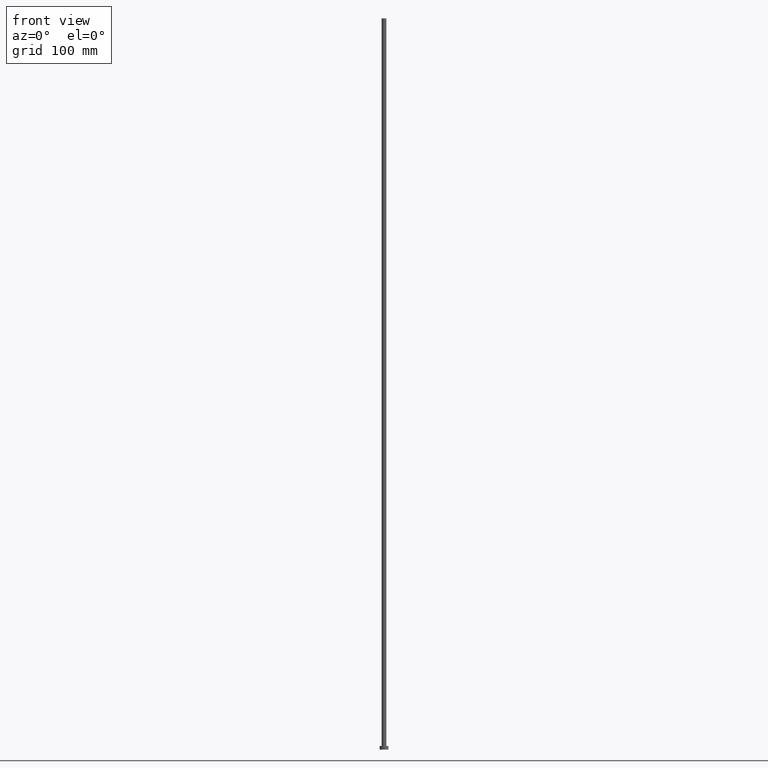
[diagram: clean part render]
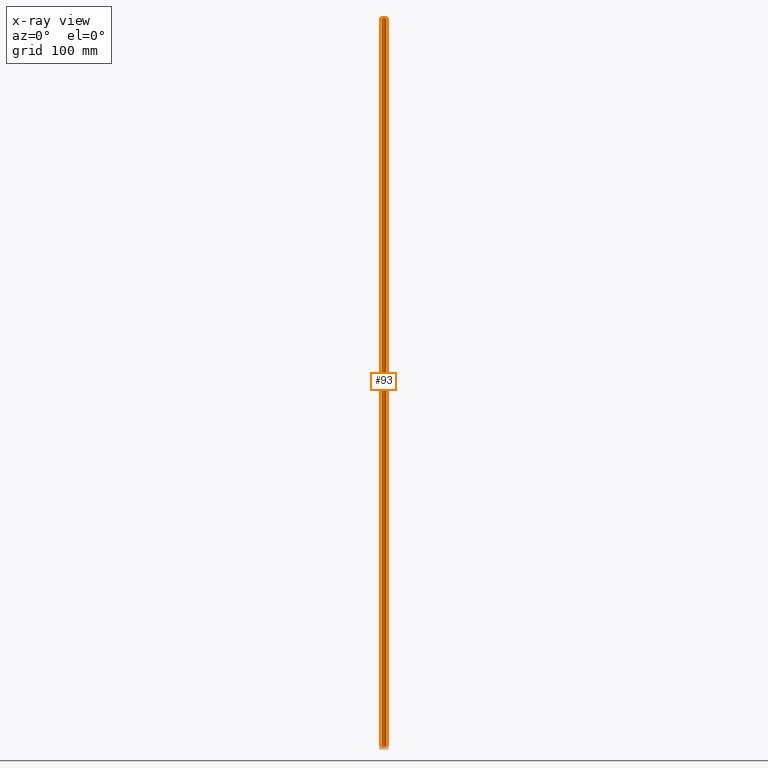
[diagram: x-ray — body ghosted, one internal face saturated and labeled with its STEP entity id]
A machine part, front view, then the same camera in x-ray: the body is ghosted and one INTERNAL B-rep face — a face not visible from any outside direction — is saturated and labeled: STEP entity #93.
In plain terms, the highlighted cylindrical surface (edge-blend (fillet) strip) has radius 3.25 mm, axis along (-0, -0, -1).
Its self-contained STEP definition (entity closure, byte-faithful):
#3 = DIRECTION ( 'NONE',  ( -0.000000000000000000, -0.000000000000000000, -1.000000000000000000 ) ) ;
#13 = CIRCLE ( 'NONE', #45, 3.250000000000000444 ) ;
#16 = LINE ( 'NONE', #80, #226 ) ;
#21 = CARTESIAN_POINT ( 'NONE',  ( -3.250000000000000444, 0.000000000000000000, 1000.000000000000000 ) ) ;
#30 = VERTEX_POINT ( 'NONE', #31 ) ;
#31 = CARTESIAN_POINT ( 'NONE',  ( -3.250000000000000444, 0.000000000000000000, 5.000000000000000000 ) ) ;
#33 = ORIENTED_EDGE ( 'NONE', *, *, #155, .F. ) ;
#36 = LINE ( 'NONE', #121, #173 ) ;
#37 = CARTESIAN_POINT ( 'NONE',  ( 3.250000000000000444, 3.980102097228897245E-16, 5.000000000000000000 ) ) ;
#45 = AXIS2_PLACEMENT_3D ( 'NONE', #78, #234, #177 ) ;
#50 = ORIENTED_EDGE ( 'NONE', *, *, #164, .F. ) ;
#59 = CARTESIAN_POINT ( 'NONE',  ( 3.250000000000000444, 3.980102097228897245E-16, 1000.000000000000000 ) ) ;
#78 = CARTESIAN_POINT ( 'NONE',  ( 0.000000000000000000, 0.000000000000000000, 1000.000000000000000 ) ) ;
#79 = CIRCLE ( 'NONE', #166, 3.250000000000000444 ) ;
#80 = CARTESIAN_POINT ( 'NONE',  ( 3.250000000000000444, 3.980102097228897245E-16, 1000.000000000000000 ) ) ;
#93 = ADVANCED_FACE ( 'NONE', ( #230 ), #131, .T. ) ;
#101 = EDGE_CURVE ( 'NONE', #147, #30, #79, .T. ) ;
#111 = ORIENTED_EDGE ( 'NONE', *, *, #101, .T. ) ;
#121 = CARTESIAN_POINT ( 'NONE',  ( -3.250000000000000444, 0.000000000000000000, 1000.000000000000000 ) ) ;
#131 = CYLINDRICAL_SURFACE ( 'NONE', #178, 3.250000000000000444 ) ;
#132 = EDGE_LOOP ( 'NONE', ( #50, #175, #111, #33 ) ) ;
#141 = DIRECTION ( 'NONE',  ( -0.000000000000000000, -0.000000000000000000, -1.000000000000000000 ) ) ;
#146 = EDGE_CURVE ( 'NONE', #248, #147, #16, .T. ) ;
#147 = VERTEX_POINT ( 'NONE', #37 ) ;
#152 = CARTESIAN_POINT ( 'NONE',  ( 0.000000000000000000, 0.000000000000000000, 5.000000000000000000 ) ) ;
#155 = EDGE_CURVE ( 'NONE', #205, #30, #36, .T. ) ;
#164 = EDGE_CURVE ( 'NONE', #248, #205, #13, .T. ) ;
#166 = AXIS2_PLACEMENT_3D ( 'NONE', #152, #232, #214 ) ;
#173 = VECTOR ( 'NONE', #3, 1000.000000000000000 ) ;
#174 = DIRECTION ( 'NONE',  ( -0.000000000000000000, -0.000000000000000000, -1.000000000000000000 ) ) ;
#175 = ORIENTED_EDGE ( 'NONE', *, *, #146, .T. ) ;
#177 = DIRECTION ( 'NONE',  ( 1.000000000000000000, 0.000000000000000000, 0.000000000000000000 ) ) ;
#178 = AXIS2_PLACEMENT_3D ( 'NONE', #212, #174, #251 ) ;
#205 = VERTEX_POINT ( 'NONE', #21 ) ;
#212 = CARTESIAN_POINT ( 'NONE',  ( 0.000000000000000000, 0.000000000000000000, 1000.000000000000000 ) ) ;
#214 = DIRECTION ( 'NONE',  ( 1.000000000000000000, 0.000000000000000000, 0.000000000000000000 ) ) ;
#226 = VECTOR ( 'NONE', #141, 1000.000000000000000 ) ;
#230 = FACE_OUTER_BOUND ( 'NONE', #132, .T. ) ;
#232 = DIRECTION ( 'NONE',  ( 0.000000000000000000, 0.000000000000000000, 1.000000000000000000 ) ) ;
#234 = DIRECTION ( 'NONE',  ( 0.000000000000000000, 0.000000000000000000, 1.000000000000000000 ) ) ;
#248 = VERTEX_POINT ( 'NONE', #59 ) ;
#251 = DIRECTION ( 'NONE',  ( -1.000000000000000000, 0.000000000000000000, 0.000000000000000000 ) ) ;